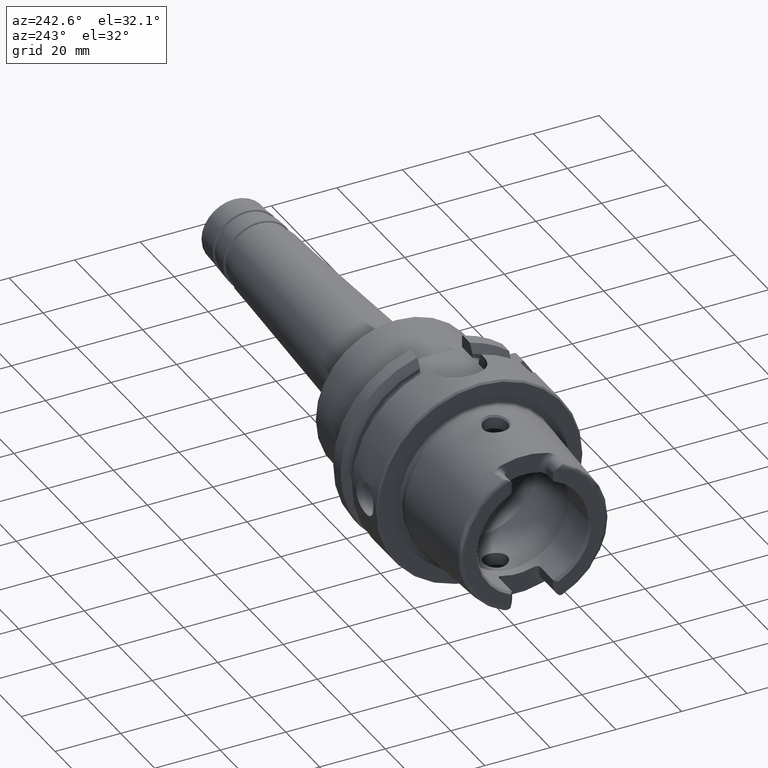
[diagram: clean part render]
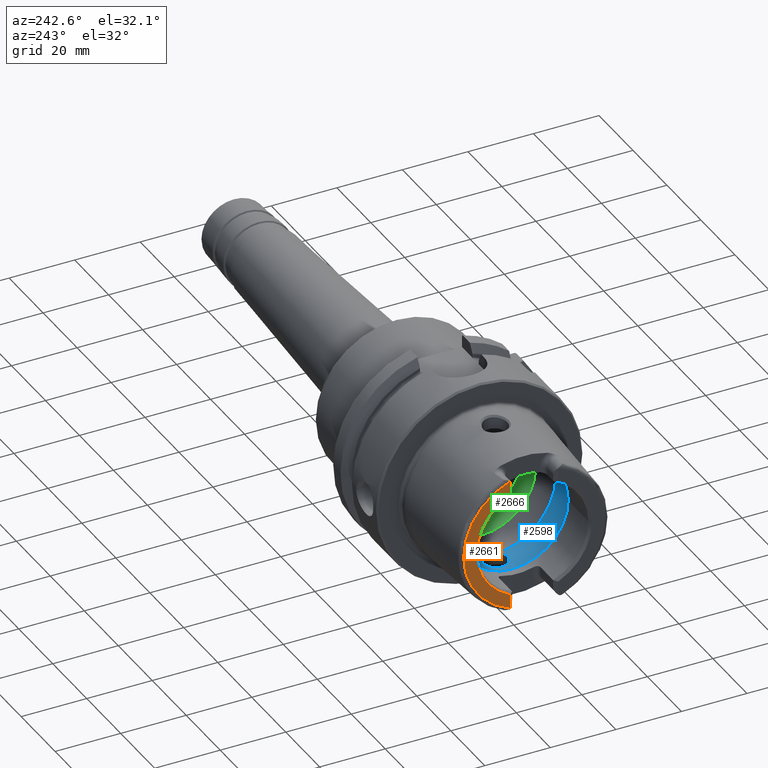
[diagram: same view with three faces highlighted in distinct colors, each labeled with its STEP entity id]
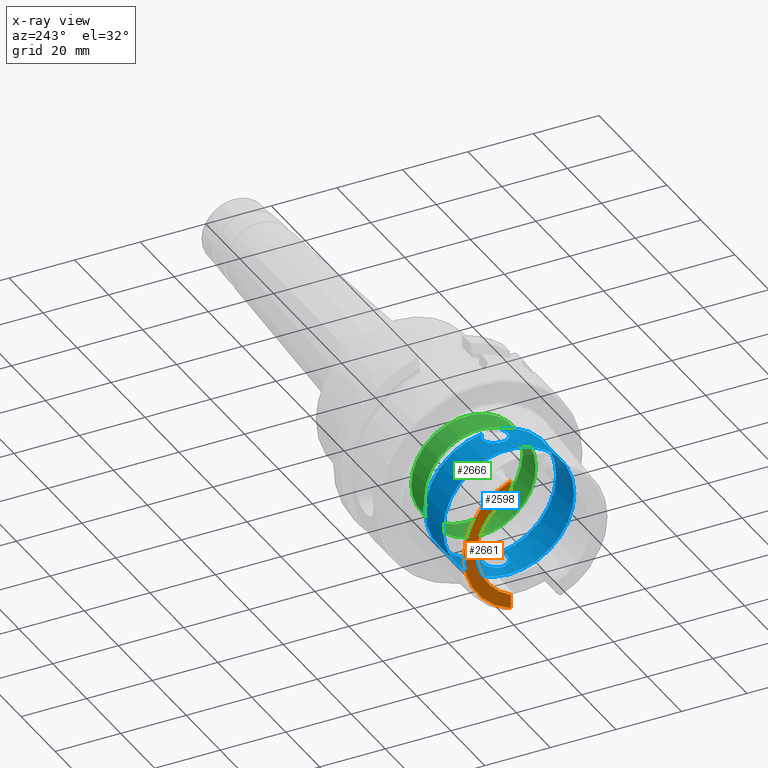
[diagram: x-ray of the same camera — body ghosted, the three highlighted faces saturated]
A machine part, auxiliary view with three faces highlighted in distinct colors.
The next image is the same camera in x-ray (body ghosted, the three faces saturated) — at least one of them is partly hidden behind the body in this view.
Their STEP definitions:

[orange] entity #2661 — the highlighted planar face has unit normal (-1, 0, 0).
#168=PLANE('',#3010);
#202=LINE('',#4221,#319);
#211=LINE('',#4307,#328);
#319=VECTOR('',#3406,10.);
#328=VECTOR('',#3439,10.);
#555=FACE_OUTER_BOUND('',#698,.T.);
#698=EDGE_LOOP('',(#2384,#2385,#2386,#2387,#2388,#2389));
#835=CIRCLE('',#2858,2.88);
#840=CIRCLE('',#2871,2.88);
#906=CIRCLE('',#3000,21.5760400159857);
#908=CIRCLE('',#3005,17.5773502691896);
#1060=VERTEX_POINT('',#4214);
#1063=VERTEX_POINT('',#4219);
#1066=VERTEX_POINT('',#4229);
#1077=VERTEX_POINT('',#4304);
#1078=VERTEX_POINT('',#4306);
#1083=VERTEX_POINT('',#4325);
#1388=EDGE_CURVE('',#1063,#1060,#202,.T.);
#1392=EDGE_CURVE('',#1066,#1060,#835,.T.);
#1407=EDGE_CURVE('',#1077,#1078,#211,.T.);
#1414=EDGE_CURVE('',#1077,#1083,#840,.T.);
#1613=EDGE_CURVE('',#1066,#1083,#906,.T.);
#1616=EDGE_CURVE('',#1078,#1063,#908,.T.);
#2384=ORIENTED_EDGE('',*,*,#1388,.F.);
#2385=ORIENTED_EDGE('',*,*,#1616,.F.);
#2386=ORIENTED_EDGE('',*,*,#1407,.F.);
#2387=ORIENTED_EDGE('',*,*,#1414,.T.);
#2388=ORIENTED_EDGE('',*,*,#1613,.F.);
#2389=ORIENTED_EDGE('',*,*,#1392,.T.);
#2661=ADVANCED_FACE('',(#555),#168,.T.);
#2858=AXIS2_PLACEMENT_3D('',#4230,#3414,#3415);
#2871=AXIS2_PLACEMENT_3D('',#4338,#3448,#3449);
#3000=AXIS2_PLACEMENT_3D('',#5486,#3773,#3774);
#3005=AXIS2_PLACEMENT_3D('',#5492,#3784,#3785);
#3010=AXIS2_PLACEMENT_3D('',#5501,#3795,#3796);
#3406=DIRECTION('',(0.,0.,-1.));
#3414=DIRECTION('center_axis',(-1.,0.,0.));
#3415=DIRECTION('ref_axis',(0.,-0.453346760926793,0.891334232685576));
#3439=DIRECTION('',(0.,1.58830189502884E-16,-1.));
#3448=DIRECTION('center_axis',(-1.,0.,0.));
#3449=DIRECTION('ref_axis',(0.,1.,0.));
#3773=DIRECTION('center_axis',(1.,0.,0.));
#3774=DIRECTION('ref_axis',(0.,0.,-1.));
#3784=DIRECTION('center_axis',(-1.,0.,0.));
#3785=DIRECTION('ref_axis',(0.,-1.,0.));
#3795=DIRECTION('center_axis',(-1.,0.,0.));
#3796=DIRECTION('ref_axis',(0.,0.,1.));
#4214=CARTESIAN_POINT('',(-32.,7.27,-20.1717424229271));
#4219=CARTESIAN_POINT('',(-32.,7.27,-16.003447831195));
#4221=CARTESIAN_POINT('',(-32.,7.27,-5.5));
#4229=CARTESIAN_POINT('',(-32.,7.39118810947246,-20.2705658801576));
#4230=CARTESIAN_POINT('Origin',(-32.,9.15,-17.99));
#4304=CARTESIAN_POINT('',(-32.,7.27,20.1717424229271));
#4306=CARTESIAN_POINT('',(-32.,7.27,16.003447831195));
#4307=CARTESIAN_POINT('',(-32.,7.27,8.995));
#4325=CARTESIAN_POINT('',(-32.,7.39118810947246,20.2705658801576));
#4338=CARTESIAN_POINT('Origin',(-32.,9.15,17.99));
#5486=CARTESIAN_POINT('Origin',(-32.,0.,0.));
#5492=CARTESIAN_POINT('Origin',(-32.,0.,0.));
#5501=CARTESIAN_POINT('Origin',(-32.,21.5760400159857,0.));

[blue] entity #2598 — the highlighted cylindrical surface (bore or boss wall) has radius 20 mm, axis along (-1, 0, 0).
#49=B_SPLINE_CURVE_WITH_KNOTS('',3,(#4647,#4648,#4649,#4650,#4651,#4652,
#4653,#4654,#4655,#4656,#4657,#4658,#4659,#4660,#4661,#4662,#4663,#4664,
#4665,#4666,#4667,#4668,#4669,#4670,#4671,#4672,#4673,#4674,#4675,#4676,
#4677),.UNSPECIFIED.,.F.,.F.,(4,2,2,2,2,2,2,2,2,2,2,3,2,2,4),(-1.4231013878275,
-1.4161913421645,-1.27456976724955,-1.1329481923346,-0.991326617419658,
-0.849705042504712,-0.708089569336007,-0.566474096167302,-0.424858622998597,
-0.283243149829893,-0.141621574914947,0.,0.141621574914946,0.283243149829893,
0.290153195494658),.UNSPECIFIED.);
#54=B_SPLINE_CURVE_WITH_KNOTS('',3,(#4813,#4814,#4815,#4816,#4817,#4818,
#4819,#4820,#4821,#4822,#4823,#4824,#4825,#4826,#4827,#4828,#4829,#4830,
#4831,#4832,#4833,#4834,#4835,#4836,#4837,#4838,#4839,#4840,#4841,#4842,
#4843),.UNSPECIFIED.,.F.,.F.,(4,2,2,3,2,2,2,2,2,2,2,2,2,2,4),(-0.290153195492892,
-0.283243149829892,-0.141621574914946,0.,0.141621574914946,0.283243149829893,
0.424858622998597,0.566474096167302,0.708089569336007,0.849705042504712,
0.991326617419658,1.1329481923346,1.27456976724955,1.4161913421645,1.42310138782926),
 .UNSPECIFIED.);
#223=LINE('',#4861,#340);
#340=VECTOR('',#3485,20.);
#418=CYLINDRICAL_SURFACE('',#2883,20.);
#492=FACE_OUTER_BOUND('',#634,.T.);
#634=EDGE_LOOP('',(#2022,#2023,#2024,#2025,#2026,#2027,#2028,#2029,#2030,
#2031));
#848=CIRCLE('',#2884,20.);
#849=CIRCLE('',#2885,20.);
#850=CIRCLE('',#2886,20.);
#851=CIRCLE('',#2887,20.);
#852=CIRCLE('',#2888,20.);
#853=CIRCLE('',#2889,20.);
#1103=VERTEX_POINT('',#4633);
#1104=VERTEX_POINT('',#4646);
#1108=VERTEX_POINT('',#4798);
#1110=VERTEX_POINT('',#4812);
#1112=VERTEX_POINT('',#4858);
#1113=VERTEX_POINT('',#4860);
#1114=VERTEX_POINT('',#4862);
#1115=VERTEX_POINT('',#4864);
#1441=EDGE_CURVE('',#1104,#1103,#49,.T.);
#1448=EDGE_CURVE('',#1110,#1108,#54,.T.);
#1452=EDGE_CURVE('',#1112,#1108,#848,.T.);
#1453=EDGE_CURVE('',#1112,#1113,#223,.T.);
#1454=EDGE_CURVE('',#1113,#1114,#849,.T.);
#1455=EDGE_CURVE('',#1114,#1115,#850,.T.);
#1456=EDGE_CURVE('',#1115,#1113,#851,.T.);
#1457=EDGE_CURVE('',#1104,#1112,#852,.T.);
#1458=EDGE_CURVE('',#1110,#1103,#853,.T.);
#2022=ORIENTED_EDGE('',*,*,#1448,.T.);
#2023=ORIENTED_EDGE('',*,*,#1452,.F.);
#2024=ORIENTED_EDGE('',*,*,#1453,.T.);
#2025=ORIENTED_EDGE('',*,*,#1454,.T.);
#2026=ORIENTED_EDGE('',*,*,#1455,.T.);
#2027=ORIENTED_EDGE('',*,*,#1456,.T.);
#2028=ORIENTED_EDGE('',*,*,#1453,.F.);
#2029=ORIENTED_EDGE('',*,*,#1457,.F.);
#2030=ORIENTED_EDGE('',*,*,#1441,.T.);
#2031=ORIENTED_EDGE('',*,*,#1458,.F.);
#2598=ADVANCED_FACE('',(#492),#418,.F.);
#2883=AXIS2_PLACEMENT_3D('',#4857,#3481,#3482);
#2884=AXIS2_PLACEMENT_3D('',#4859,#3483,#3484);
#2885=AXIS2_PLACEMENT_3D('',#4863,#3486,#3487);
#2886=AXIS2_PLACEMENT_3D('',#4865,#3488,#3489);
#2887=AXIS2_PLACEMENT_3D('',#4866,#3490,#3491);
#2888=AXIS2_PLACEMENT_3D('',#4867,#3492,#3493);
#2889=AXIS2_PLACEMENT_3D('',#4868,#3494,#3495);
#3481=DIRECTION('center_axis',(-1.,0.,0.));
#3482=DIRECTION('ref_axis',(0.,1.,0.));
#3483=DIRECTION('center_axis',(-1.,0.,0.));
#3484=DIRECTION('ref_axis',(0.,0.,1.));
#3485=DIRECTION('',(-1.,0.,0.));
#3486=DIRECTION('center_axis',(-1.,0.,0.));
#3487=DIRECTION('ref_axis',(0.,0.,1.));
#3488=DIRECTION('center_axis',(-1.,0.,0.));
#3489=DIRECTION('ref_axis',(0.,0.,1.));
#3490=DIRECTION('center_axis',(-1.,0.,0.));
#3491=DIRECTION('ref_axis',(0.,0.,1.));
#3492=DIRECTION('center_axis',(-1.,0.,0.));
#3493=DIRECTION('ref_axis',(0.,0.,1.));
#3494=DIRECTION('center_axis',(-1.,0.,0.));
#3495=DIRECTION('ref_axis',(0.,0.,1.));
#4633=CARTESIAN_POINT('',(-6.3,2.60240273593462,-19.8299646999182));
#4646=CARTESIAN_POINT('',(-6.3,-2.60240273593462,-19.8299646999182));
#4647=CARTESIAN_POINT('Ctrl Pts',(-6.3,-2.60240273593462,-19.8299646999182));
#4648=CARTESIAN_POINT('Ctrl Pts',(-6.31601537193754,-2.61901872839199,-19.8277840856364));
#4649=CARTESIAN_POINT('Ctrl Pts',(-6.33213480647885,-2.63543566537795,-19.82560835073));
#4650=CARTESIAN_POINT('Ctrl Pts',(-6.68067160381732,-2.98397246271642,-19.7789868876592));
#4651=CARTESIAN_POINT('Ctrl Pts',(-7.10159661632629,-3.27238367725626,-19.731429741537));
#4652=CARTESIAN_POINT('Ctrl Pts',(-8.0251754070192,-3.65542701546408,-19.6640704965084));
#4653=CARTESIAN_POINT('Ctrl Pts',(-8.52792808361685,-3.75,-19.6452920568771));
#4654=CARTESIAN_POINT('Ctrl Pts',(-9.47207191638316,-3.75,-19.6452920568771));
#4655=CARTESIAN_POINT('Ctrl Pts',(-9.97482459298081,-3.65542701546407,-19.6640704965084));
#4656=CARTESIAN_POINT('Ctrl Pts',(-10.8984033836737,-3.27238367725626,-19.731429741537));
#4657=CARTESIAN_POINT('Ctrl Pts',(-11.3193283961827,-2.98397246271642,-19.7789868876592));
#4658=CARTESIAN_POINT('Ctrl Pts',(-11.9839581446669,-2.31934271423217,-19.8678900149943));
#4659=CARTESIAN_POINT('Ctrl Pts',(-12.2723805817074,-1.89841159537053,-19.9150796801946));
#4660=CARTESIAN_POINT('Ctrl Pts',(-12.6554320620407,-0.974811677040412,
-19.9815942165963));
#4661=CARTESIAN_POINT('Ctrl Pts',(-12.75,-0.472051577229018,-20.));
#4662=CARTESIAN_POINT('Ctrl Pts',(-12.75,0.472051577229015,-20.));
#4663=CARTESIAN_POINT('Ctrl Pts',(-12.6554320620407,0.97481167704041,-19.9815942165963));
#4664=CARTESIAN_POINT('Ctrl Pts',(-12.2723805817074,1.89841159537052,-19.9150796801946));
#4665=CARTESIAN_POINT('Ctrl Pts',(-11.9839581446669,2.31934271423217,-19.8678900149943));
#4666=CARTESIAN_POINT('Ctrl Pts',(-11.3193283961827,2.98397246271642,-19.7789868876592));
#4667=CARTESIAN_POINT('Ctrl Pts',(-10.8984033836737,3.27238367725626,-19.731429741537));
#4668=CARTESIAN_POINT('Ctrl Pts',(-9.97482459298081,3.65542701546408,-19.6640704965084));
#4669=CARTESIAN_POINT('Ctrl Pts',(-9.47207191638316,3.75,-19.6452920568771));
#4670=CARTESIAN_POINT('Ctrl Pts',(-9.,3.75,-19.6452920568771));
#4671=CARTESIAN_POINT('Ctrl Pts',(-8.52792808361685,3.75,-19.6452920568771));
#4672=CARTESIAN_POINT('Ctrl Pts',(-8.0251754070192,3.65542701546408,-19.6640704965084));
#4673=CARTESIAN_POINT('Ctrl Pts',(-7.10159661632629,3.27238367725626,-19.731429741537));
#4674=CARTESIAN_POINT('Ctrl Pts',(-6.68067160381732,2.98397246271642,-19.7789868876592));
#4675=CARTESIAN_POINT('Ctrl Pts',(-6.3321348064747,2.6354356653738,-19.8256083507306));
#4676=CARTESIAN_POINT('Ctrl Pts',(-6.31601537193366,2.61901872838797,-19.8277840856369));
#4677=CARTESIAN_POINT('Ctrl Pts',(-6.3,2.60240273593462,-19.8299646999182));
#4798=CARTESIAN_POINT('',(-6.3,-2.60240273593462,19.8299646999182));
#4812=CARTESIAN_POINT('',(-6.3,2.60240273593462,19.8299646999182));
#4813=CARTESIAN_POINT('Ctrl Pts',(-6.3,2.60240273593462,19.8299646999182));
#4814=CARTESIAN_POINT('Ctrl Pts',(-6.31601537193753,2.61901872839199,19.8277840856364));
#4815=CARTESIAN_POINT('Ctrl Pts',(-6.33213480647884,2.63543566537795,19.82560835073));
#4816=CARTESIAN_POINT('Ctrl Pts',(-6.68067160381732,2.98397246271642,19.7789868876592));
#4817=CARTESIAN_POINT('Ctrl Pts',(-7.10159661632629,3.27238367725626,19.731429741537));
#4818=CARTESIAN_POINT('Ctrl Pts',(-8.0251754070192,3.65542701546408,19.6640704965084));
#4819=CARTESIAN_POINT('Ctrl Pts',(-8.52792808361685,3.75,19.6452920568771));
#4820=CARTESIAN_POINT('Ctrl Pts',(-9.,3.75,19.6452920568771));
#4821=CARTESIAN_POINT('Ctrl Pts',(-9.47207191638315,3.75,19.6452920568771));
#4822=CARTESIAN_POINT('Ctrl Pts',(-9.9748245929808,3.65542701546408,19.6640704965084));
#4823=CARTESIAN_POINT('Ctrl Pts',(-10.8984033836737,3.27238367725626,19.731429741537));
#4824=CARTESIAN_POINT('Ctrl Pts',(-11.3193283961827,2.98397246271642,19.7789868876592));
#4825=CARTESIAN_POINT('Ctrl Pts',(-11.9839581446669,2.31934271423217,19.8678900149943));
#4826=CARTESIAN_POINT('Ctrl Pts',(-12.2723805817074,1.89841159537052,19.9150796801946));
#4827=CARTESIAN_POINT('Ctrl Pts',(-12.6554320620407,0.97481167704041,19.9815942165963));
#4828=CARTESIAN_POINT('Ctrl Pts',(-12.75,0.472051577229015,20.));
#4829=CARTESIAN_POINT('Ctrl Pts',(-12.75,-0.472051577229017,20.));
#4830=CARTESIAN_POINT('Ctrl Pts',(-12.6554320620407,-0.974811677040414,
19.9815942165963));
#4831=CARTESIAN_POINT('Ctrl Pts',(-12.2723805817074,-1.89841159537053,19.9150796801946));
#4832=CARTESIAN_POINT('Ctrl Pts',(-11.9839581446669,-2.31934271423217,19.8678900149943));
#4833=CARTESIAN_POINT('Ctrl Pts',(-11.3193283961827,-2.98397246271642,19.7789868876592));
#4834=CARTESIAN_POINT('Ctrl Pts',(-10.8984033836737,-3.27238367725626,19.731429741537));
#4835=CARTESIAN_POINT('Ctrl Pts',(-9.9748245929808,-3.65542701546407,19.6640704965084));
#4836=CARTESIAN_POINT('Ctrl Pts',(-9.47207191638315,-3.75,19.6452920568771));
#4837=CARTESIAN_POINT('Ctrl Pts',(-8.52792808361684,-3.75,19.6452920568771));
#4838=CARTESIAN_POINT('Ctrl Pts',(-8.02517540701919,-3.65542701546407,19.6640704965084));
#4839=CARTESIAN_POINT('Ctrl Pts',(-7.10159661632629,-3.27238367725626,19.731429741537));
#4840=CARTESIAN_POINT('Ctrl Pts',(-6.68067160381732,-2.98397246271642,19.7789868876592));
#4841=CARTESIAN_POINT('Ctrl Pts',(-6.3321348064747,-2.6354356653738,19.8256083507306));
#4842=CARTESIAN_POINT('Ctrl Pts',(-6.31601537193366,-2.61901872838797,19.8277840856369));
#4843=CARTESIAN_POINT('Ctrl Pts',(-6.3,-2.60240273593462,19.8299646999182));
#4857=CARTESIAN_POINT('Origin',(-11.6087822173509,0.,0.));
#4858=CARTESIAN_POINT('',(-6.3,-20.,2.44929359829471E-15));
#4859=CARTESIAN_POINT('Origin',(-6.3,0.,0.));
#4860=CARTESIAN_POINT('',(-16.9175644347018,-20.,2.44929359829471E-15));
#4861=CARTESIAN_POINT('',(-11.6087822173509,-20.,2.44929359829471E-15));
#4862=CARTESIAN_POINT('',(-16.9175644347018,20.,0.));
#4863=CARTESIAN_POINT('Origin',(-16.9175644347018,0.,0.));
#4864=CARTESIAN_POINT('',(-16.9175644347018,-2.44929359829471E-15,-20.));
#4865=CARTESIAN_POINT('Origin',(-16.9175644347018,0.,0.));
#4866=CARTESIAN_POINT('Origin',(-16.9175644347018,0.,0.));
#4867=CARTESIAN_POINT('Origin',(-6.3,0.,0.));
#4868=CARTESIAN_POINT('Origin',(-6.3,0.,0.));

[green] entity #2666 — the highlighted cylindrical surface (bore or boss wall) has radius 17 mm, axis along (-1, 0, 0).
#284=LINE('',#5529,#401);
#401=VECTOR('',#3830,17.);
#437=CYLINDRICAL_SURFACE('',#3026,17.);
#560=FACE_OUTER_BOUND('',#705,.T.);
#705=EDGE_LOOP('',(#2409,#2410,#2411,#2412,#2413,#2414,#2415,#2416));
#854=CIRCLE('',#2891,17.);
#855=CIRCLE('',#2892,17.);
#856=CIRCLE('',#2893,17.);
#920=CIRCLE('',#3023,17.);
#921=CIRCLE('',#3024,17.);
#922=CIRCLE('',#3025,17.);
#1116=VERTEX_POINT('',#4870);
#1117=VERTEX_POINT('',#4871);
#1118=VERTEX_POINT('',#4873);
#1222=VERTEX_POINT('',#5521);
#1223=VERTEX_POINT('',#5523);
#1224=VERTEX_POINT('',#5525);
#1459=EDGE_CURVE('',#1116,#1117,#854,.T.);
#1460=EDGE_CURVE('',#1118,#1116,#855,.T.);
#1461=EDGE_CURVE('',#1117,#1118,#856,.T.);
#1630=EDGE_CURVE('',#1222,#1223,#920,.T.);
#1631=EDGE_CURVE('',#1223,#1224,#921,.T.);
#1632=EDGE_CURVE('',#1224,#1222,#922,.T.);
#1633=EDGE_CURVE('',#1223,#1118,#284,.T.);
#2409=ORIENTED_EDGE('',*,*,#1632,.F.);
#2410=ORIENTED_EDGE('',*,*,#1631,.F.);
#2411=ORIENTED_EDGE('',*,*,#1633,.T.);
#2412=ORIENTED_EDGE('',*,*,#1460,.T.);
#2413=ORIENTED_EDGE('',*,*,#1459,.T.);
#2414=ORIENTED_EDGE('',*,*,#1461,.T.);
#2415=ORIENTED_EDGE('',*,*,#1633,.F.);
#2416=ORIENTED_EDGE('',*,*,#1630,.F.);
#2666=ADVANCED_FACE('',(#560),#437,.F.);
#2891=AXIS2_PLACEMENT_3D('',#4872,#3498,#3499);
#2892=AXIS2_PLACEMENT_3D('',#4874,#3500,#3501);
#2893=AXIS2_PLACEMENT_3D('',#4875,#3502,#3503);
#3023=AXIS2_PLACEMENT_3D('',#5524,#3822,#3823);
#3024=AXIS2_PLACEMENT_3D('',#5526,#3824,#3825);
#3025=AXIS2_PLACEMENT_3D('',#5527,#3826,#3827);
#3026=AXIS2_PLACEMENT_3D('',#5528,#3828,#3829);
#3498=DIRECTION('center_axis',(-1.,0.,0.));
#3499=DIRECTION('ref_axis',(0.,0.,1.));
#3500=DIRECTION('center_axis',(-1.,0.,0.));
#3501=DIRECTION('ref_axis',(0.,0.,1.));
#3502=DIRECTION('center_axis',(-1.,0.,0.));
#3503=DIRECTION('ref_axis',(0.,0.,1.));
#3822=DIRECTION('center_axis',(-1.,0.,0.));
#3823=DIRECTION('ref_axis',(0.,0.,1.));
#3824=DIRECTION('center_axis',(-1.,0.,0.));
#3825=DIRECTION('ref_axis',(0.,0.,1.));
#3826=DIRECTION('center_axis',(-1.,0.,0.));
#3827=DIRECTION('ref_axis',(0.,0.,1.));
#3828=DIRECTION('center_axis',(-1.,0.,0.));
#3829=DIRECTION('ref_axis',(0.,1.,0.));
#3830=DIRECTION('',(-1.,0.,0.));
#4870=CARTESIAN_POINT('',(-0.055002001601602,17.,0.));
#4871=CARTESIAN_POINT('',(-0.0550020016016028,-2.0818995585505E-15,-17.));
#4872=CARTESIAN_POINT('Origin',(-0.0550020016016028,0.,0.));
#4873=CARTESIAN_POINT('',(-0.0550020016016028,-17.,2.0818995585505E-15));
#4874=CARTESIAN_POINT('Origin',(-0.0550020016016028,0.,0.));
#4875=CARTESIAN_POINT('Origin',(-0.0550020016016028,0.,0.));
#5521=CARTESIAN_POINT('',(7.67084380241115,-2.0818995585505E-15,-17.));
#5523=CARTESIAN_POINT('',(7.67084380241115,-17.,2.0818995585505E-15));
#5524=CARTESIAN_POINT('Origin',(7.67084380241115,0.,0.));
#5525=CARTESIAN_POINT('',(7.67084380241115,17.,0.));
#5526=CARTESIAN_POINT('Origin',(7.67084380241115,0.,0.));
#5527=CARTESIAN_POINT('Origin',(7.67084380241115,0.,0.));
#5528=CARTESIAN_POINT('Origin',(3.80792090040477,0.,0.));
#5529=CARTESIAN_POINT('',(3.80792090040477,-17.,2.0818995585505E-15));